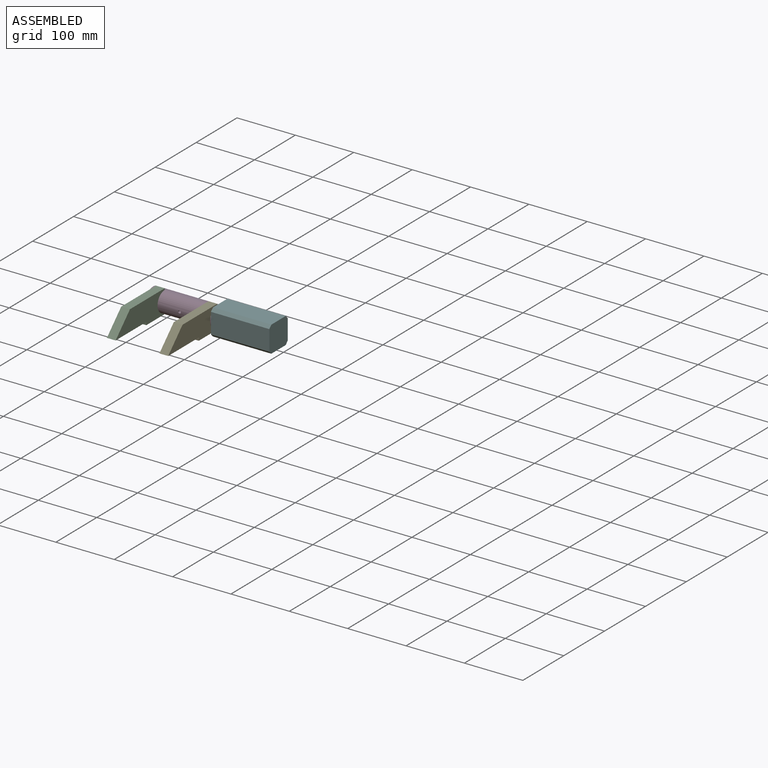
[diagram: assembled view]
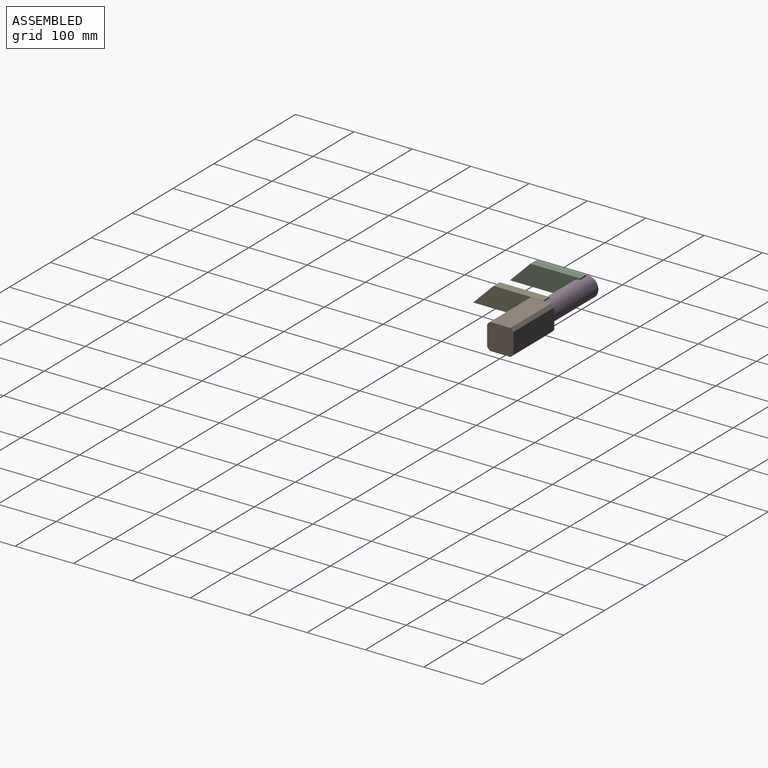
[diagram: assembled view, second angle]
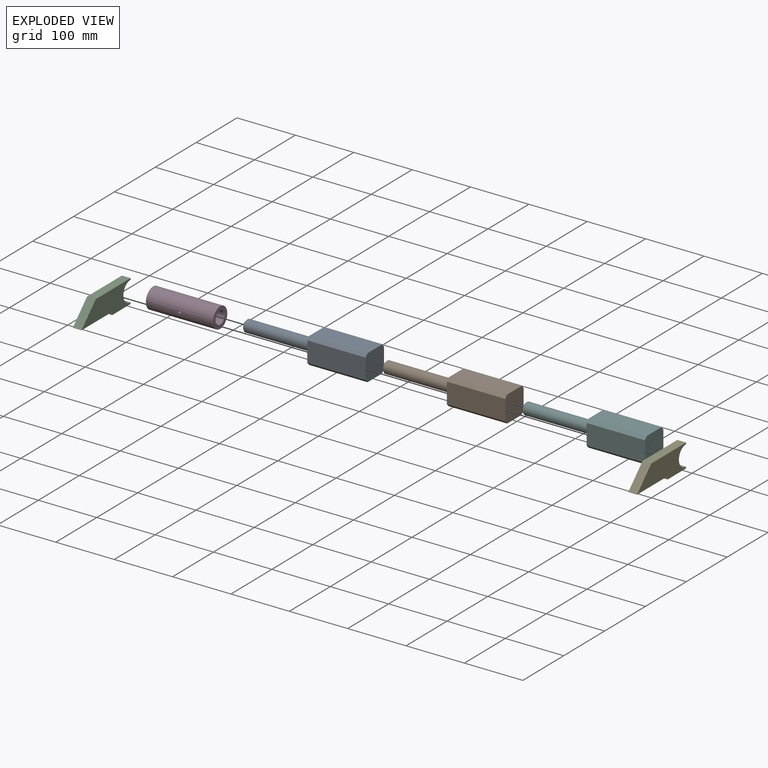
[diagram: exploded view]
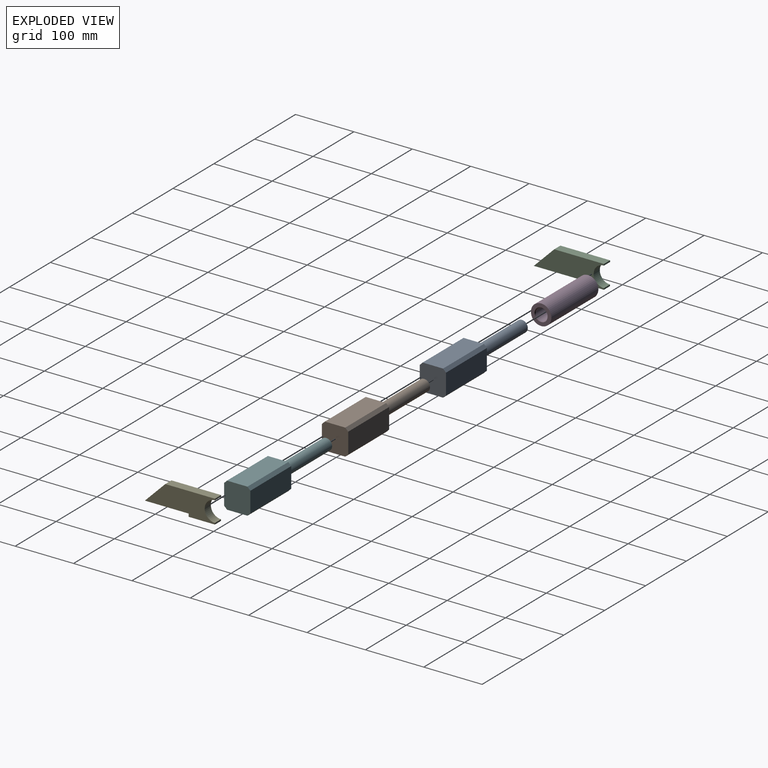
[diagram: exploded view, second angle]
ASSEMBLY  parts=6 mates=3
PART A: 14 faces, bbox 220x45x45 mm
  f0: plane 100x35mm, normal (0,-1,0), area 3500mm2, adj f4,f6,f12,f13
  f1: plane 100x35mm, normal (0,0,-1), area 3500mm2, adj f4,f6,f11,f13
  f2: plane 100x35mm, normal (0,1,0), area 3500mm2, adj f4,f6,f10,f11
  f3: plane 100x35mm, normal (0,0,1), area 3500mm2, adj f4,f6,f10,f12
  f4: plane 45x45mm, normal (1,0,0), area 1975mm2, adj f0,f1,f2,f3,f10,f11,f12,f13
  f5: cylinder r=10mm len=116mm, axis (-1,0,0), area 7288.5mm2, adj f8,f9
  f6: plane 45x45mm, normal (-1,0,0), area 1522.6mm2, adj f0,f1,f2,f3,f9,f10,f11,f12
  f7: plane 16x16mm, normal (-1,0,0), area 201.1mm2, adj f8
  f8: cone r=8mm half-angle=45deg, axis (1,0,0), area 159.9mm2, adj f5,f7
  f9: torus R=12mm, axis (-1,0,0), area 211.7mm2, adj f5,f6
  f10: plane 100x5mm, normal (0,0.71,0.71), area 707.1mm2, adj f2,f3,f4,f6
  f11: plane 100x5mm, normal (0,0.71,-0.71), area 707.1mm2, adj f1,f2,f4,f6
  f12: plane 100x5mm, normal (0,-0.71,0.71), area 707.1mm2, adj f0,f3,f4,f6
  f13: plane 100x5mm, normal (0,-0.71,-0.71), area 707.1mm2, adj f0,f1,f4,f6
PART B: same geometry as A
PART C: 10 faces, bbox 120.1x40x15 mm
  f0: plane 45x15mm, normal (0,1,0), area 675mm2, adj f1,f7,f8,f9
  f1: plane 15x5mm, normal (-1,0,0), area 75mm2, adj f0,f2,f8,f9
  f2: plane 75x15mm, normal (0,1,0), area 1125mm2, adj f1,f3,f8,f9
  f3: plane 35x35mm, normal (-0.71,-0.71,0), area 742.5mm2, adj f2,f4,f8,f9
  f4: plane 85.12x15mm, normal (0,-1,0), area 1276.8mm2, adj f3,f5,f8,f9
  f5: plane 15x2.5mm, normal (1,0,0), area 37.5mm2, adj f4,f6,f8,f9
  f6: cylinder r=17.5mm len=35mm, axis (0,0,-1), area 826.5mm2, adj f5,f7,f8,f9
  f7: plane 15x2.5mm, normal (1,0,0), area 37.5mm2, adj f0,f6,f8,f9
  f8: plane 120.12x40mm, normal (0,0,1), area 3331.7mm2, adj f0,f1,f2,f3,f4,f5,f6,f7
  f9: plane 120.12x40mm, normal (0,0,-1), area 3331.7mm2, adj f0,f1,f2,f3,f4,f5,f6,f7
PART D: 7 faces, bbox 35x35x115 mm
  f0: cylinder r=10.25mm len=113mm, axis (0,0,-1), area 7259.3mm2, adj f4,f5,f6
  f1: cylinder r=17.5mm len=115mm, axis (0,0,-1), area 12626.7mm2, adj f2,f3,f4
  f2: plane 35x35mm, normal (0,0,1), area 564.5mm2, adj f1,f5
  f3: plane 35x35mm, normal (0,0,-1), area 564.5mm2, adj f1,f6
  f4: cylinder r=2.4mm len=7.54mm, axis (0,1,0), area 110.2mm2, adj f0,f1
  f5: cone r=10.25mm half-angle=45deg, axis (0,0,1), area 95.5mm2, adj f0,f2
  f6: cone r=11.25mm half-angle=45deg, axis (0,0,-1), area 95.5mm2, adj f0,f3
PART E: same geometry as C
PART F: same geometry as A
PLACE A t=(-6.26,-3.43,0)mm
PLACE B t=(-6.26,-3.43,0)mm
PLACE C rot(axis=(-0.58,-0.58,0.58),120deg) t=(-208.76,-59.16,0)mm
PLACE D rot(axis=(0,1,0),90deg) t=(-163.76,-3.43,0)mm
PLACE E rot(axis=(-0.58,-0.58,0.58),120deg) t=(-118.76,-59.16,0)mm
PLACE F t=(-6.26,-3.43,0)mm
MATE fastened C.f6 <-> D.f0  axis (-1,0,0) through (-216.26,-3.43,0)mm
MATE fastened E.f6 <-> D.f0  axis (-1,0,0) through (-126.26,-3.43,0)mm
MATE fastened D.f0 <-> A.f5  axis (-1,0,0) through (-106.26,-3.43,0)mm
